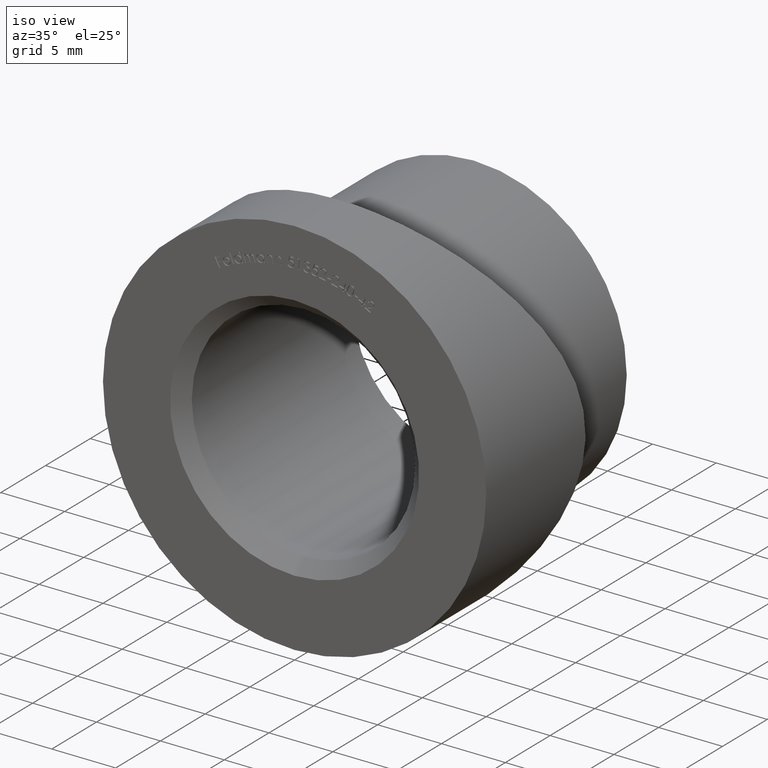
[diagram: clean part render]
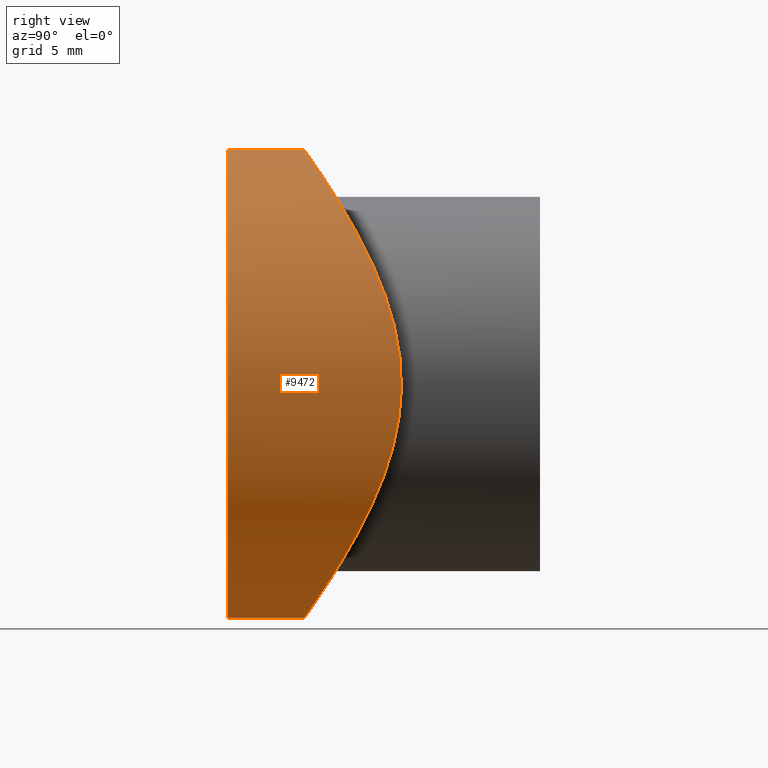
[diagram: tour spotlight — one face highlighted and labeled with its STEP entity id]
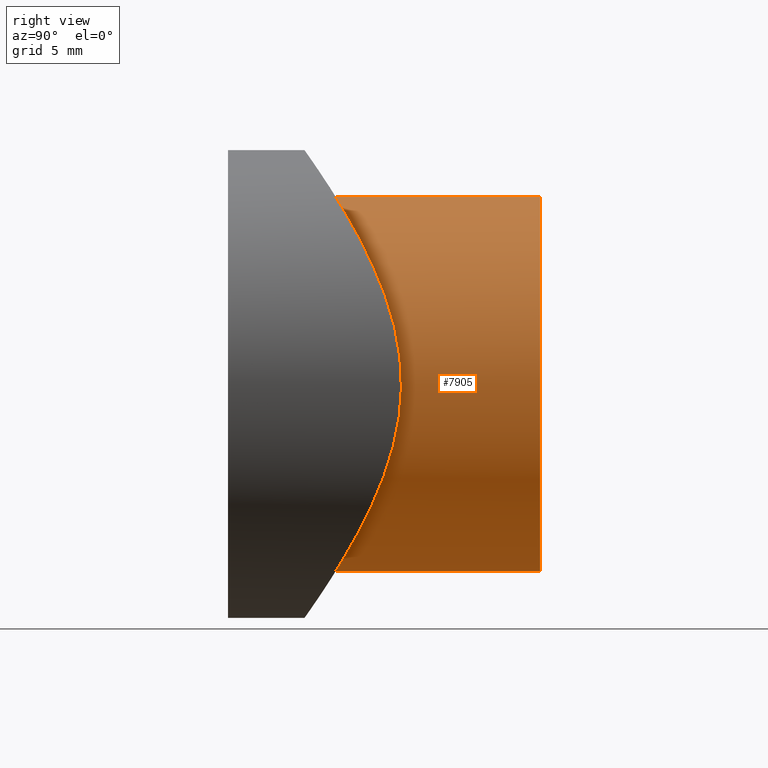
[diagram: tour spotlight — one face highlighted and labeled with its STEP entity id]
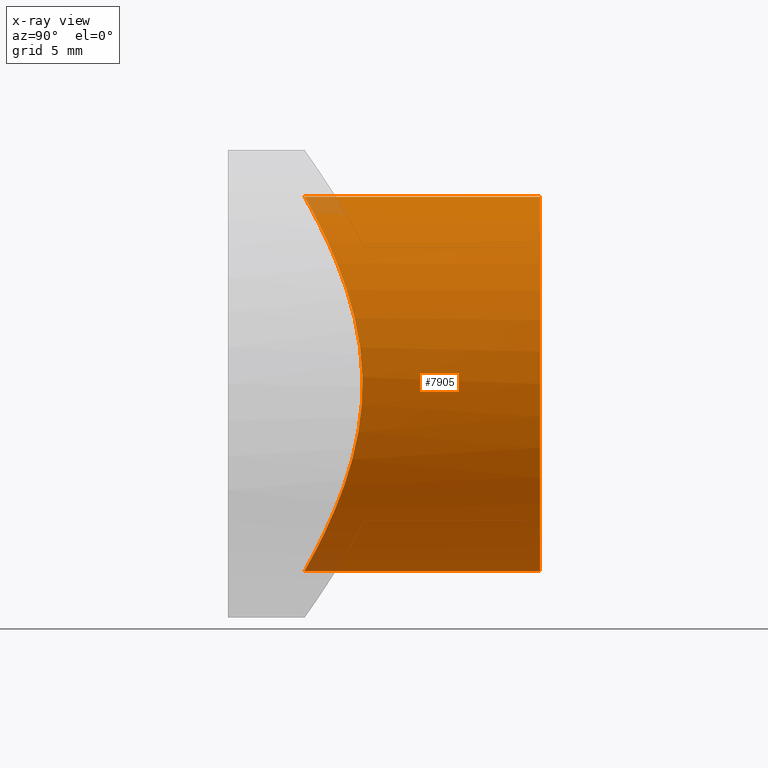
[diagram: x-ray of the same camera — body ghosted, this tour face saturated]
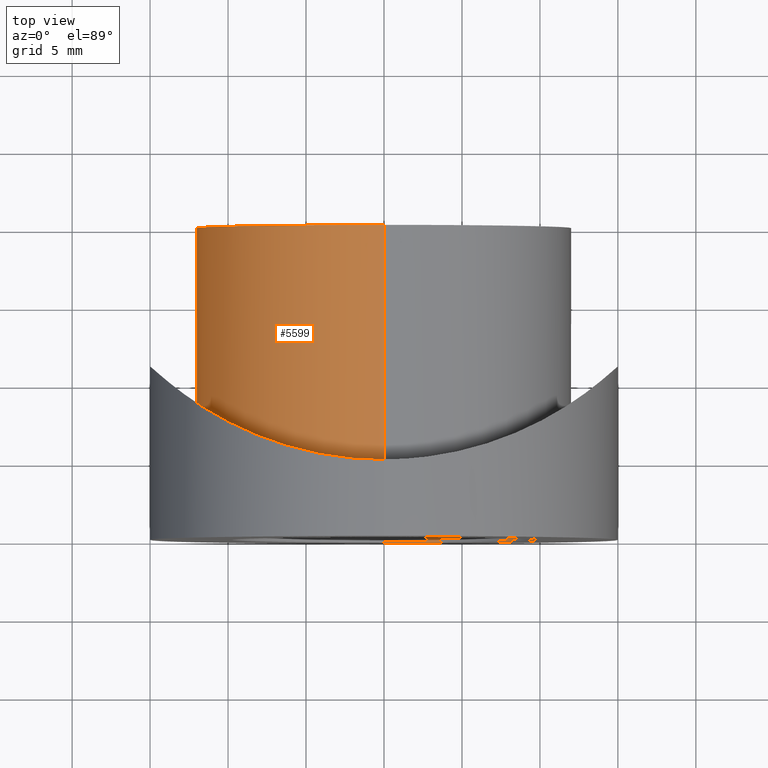
[diagram: tour spotlight — one face highlighted and labeled with its STEP entity id]
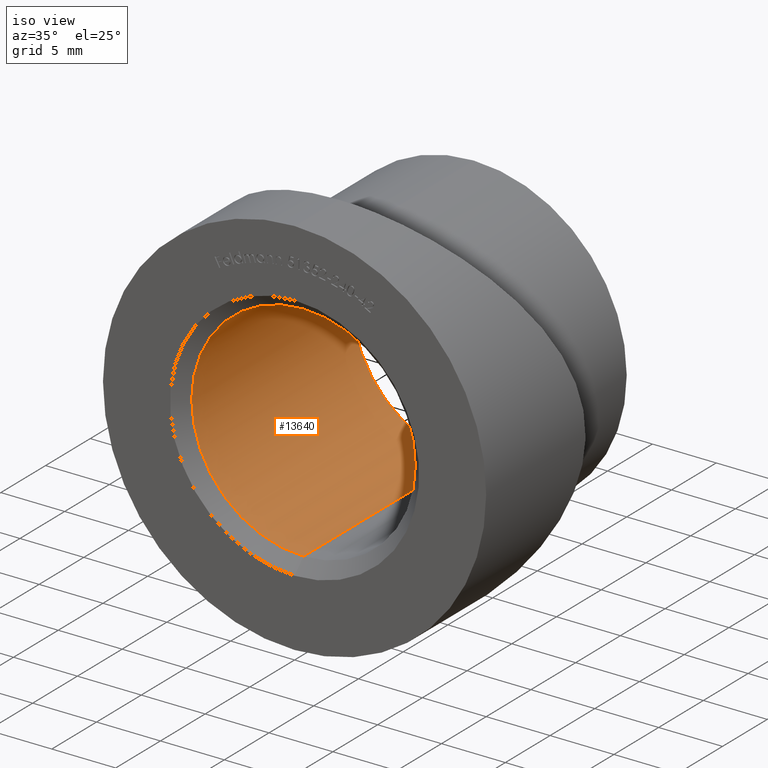
[diagram: tour spotlight — one face highlighted and labeled with its STEP entity id]
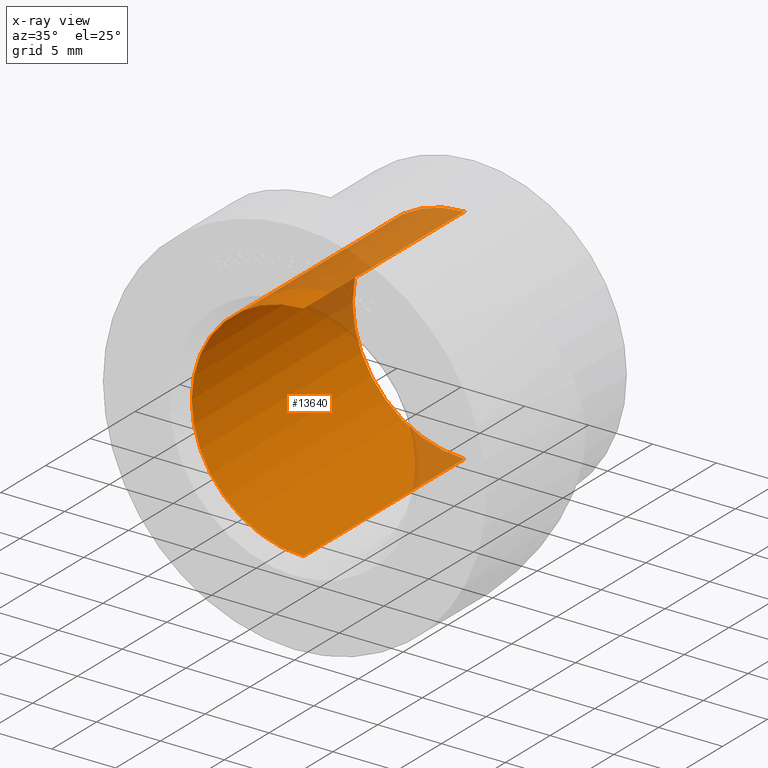
[diagram: x-ray of the same camera — body ghosted, this tour face saturated]
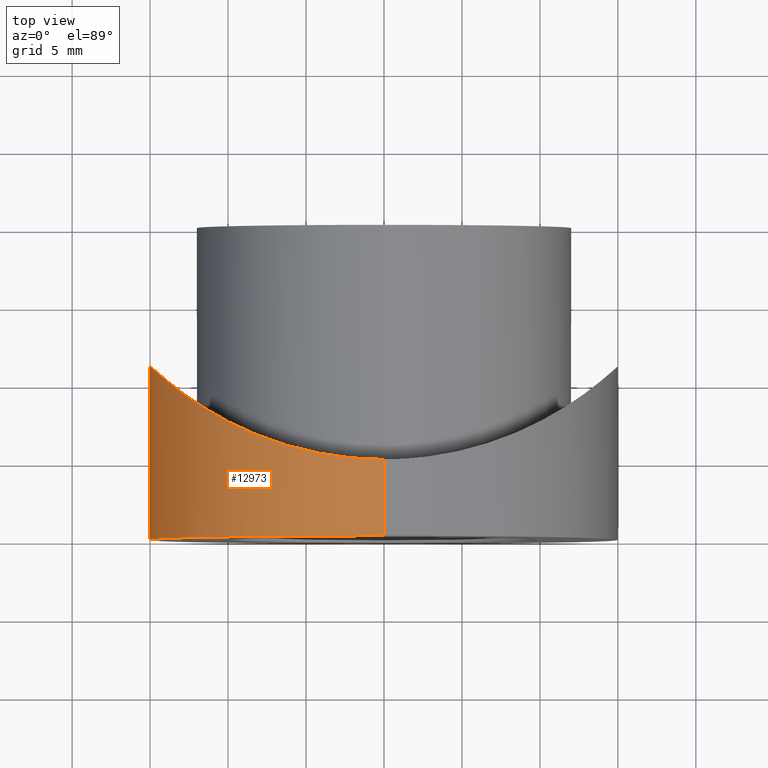
[diagram: tour spotlight — one face highlighted and labeled with its STEP entity id]
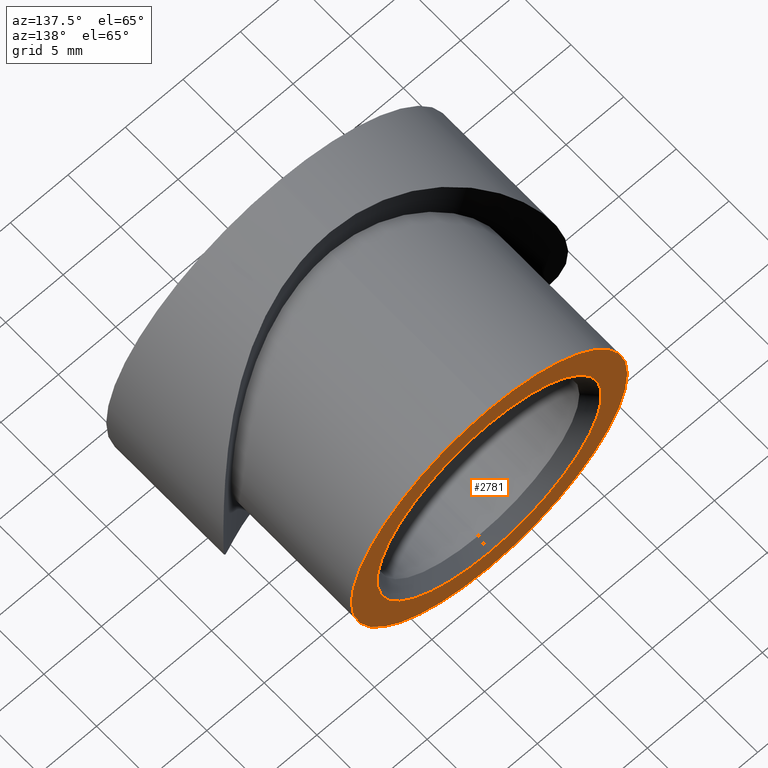
[diagram: tour spotlight — one face highlighted and labeled with its STEP entity id]
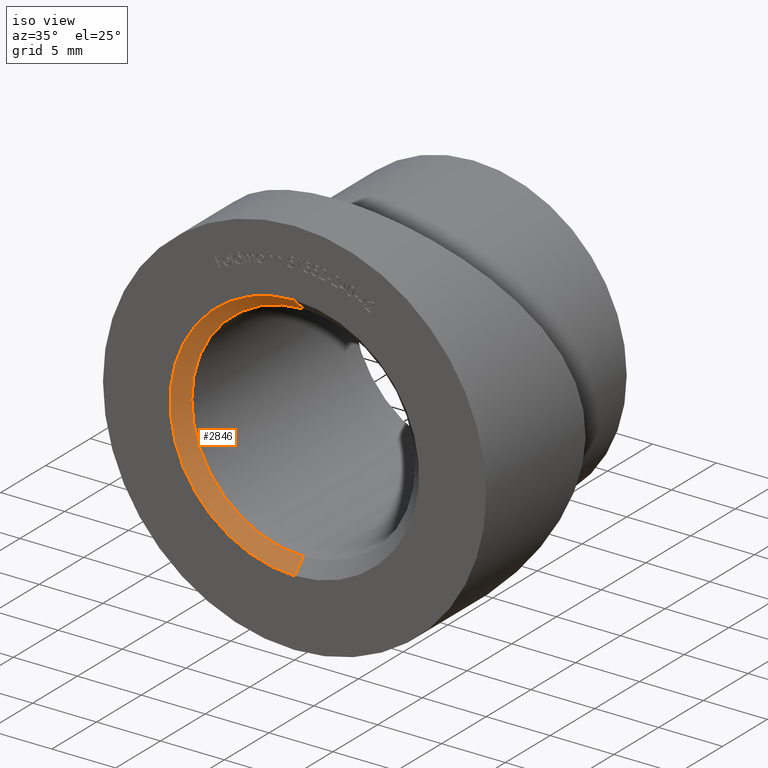
[diagram: tour spotlight — one face highlighted and labeled with its STEP entity id]
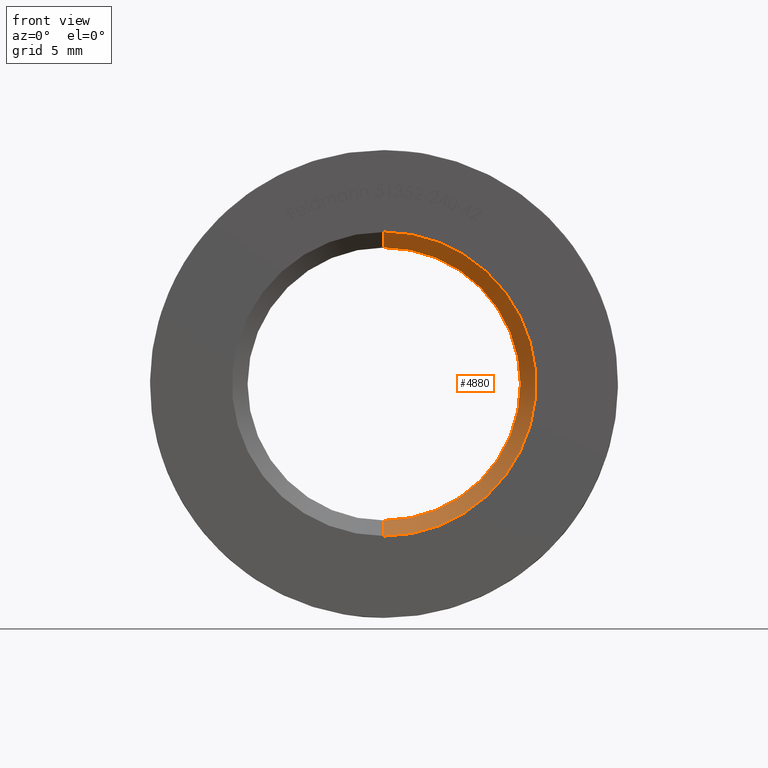
[diagram: tour spotlight — one face highlighted and labeled with its STEP entity id]
A machine part: a face-by-face anatomy tour. The part has 271 B-rep faces; the first image is the clean iso view, then the 8 largest visible faces are spotlighted one at a time (largest first), each with its STEP entity span.

Face 1 — right view, entity #9472. In plain terms, the highlighted cylindrical surface (partial cylindrical patch) has radius 15 mm, axis along (-0, -1, -0).
Definition (entity closure, byte-faithful):
#166 = CARTESIAN_POINT ( 'NONE',  ( 12.95086280399891400, 9.313078277714879500, 7.583238486127875400 ) ) ;
#256 = CARTESIAN_POINT ( 'NONE',  ( 14.48454752923775700, 10.61715601495642900, 4.027335326478660900 ) ) ;
#323 = CARTESIAN_POINT ( 'NONE',  ( 1.836970198721029600E-015, 0.0000000000000000000, 15.00000000000000000 ) ) ;
#352 = CARTESIAN_POINT ( 'NONE',  ( 11.31931210414192200, 8.158160783535239000, 9.887999797731129800 ) ) ;
#419 = DIRECTION ( 'NONE',  ( 0.0000000000000000000, 0.0000000000000000000, 1.000000000000000000 ) ) ;
#918 = VECTOR ( 'NONE', #11268, 1000.000000000000000 ) ;
#1271 = CARTESIAN_POINT ( 'NONE',  ( 10.31771975614302400, 7.576129878483611100, 10.89814207383176200 ) ) ;
#1352 = CARTESIAN_POINT ( 'NONE',  ( 4.026673480603225400, 5.280182047635289400, 14.45809961079490200 ) ) ;
#1402 = CARTESIAN_POINT ( 'NONE',  ( 14.99970170496068900, 11.11837962911275200, 0.5190039660785226200 ) ) ;
#1505 = EDGE_CURVE ( 'NONE', #1825, #13353, #12488, .T. ) ;
#1825 = VERTEX_POINT ( 'NONE', #13374 ) ;
#1859 = EDGE_LOOP ( 'NONE', ( #13791, #5250, #2007, #11762 ) ) ;
#1997 = CARTESIAN_POINT ( 'NONE',  ( 1.033356399120643100, 4.900000000000002100, -15.00000000000000400 ) ) ;
#2007 = ORIENTED_EDGE ( 'NONE', *, *, #7743, .T. ) ;
#2096 = CARTESIAN_POINT ( 'NONE',  ( 6.351530455719397700, 5.868324486726909800, -13.59783177504358200 ) ) ;
#2438 = CARTESIAN_POINT ( 'NONE',  ( 14.97343534145617900, 11.09195012549243100, 1.026651843955649800 ) ) ;
#2482 = CARTESIAN_POINT ( 'NONE',  ( 0.5101671749474626600, 4.899999999999997700, 15.00000000000000400 ) ) ;
#2531 = CARTESIAN_POINT ( 'NONE',  ( 2.048559601778870800, 4.992956673467698000, 14.86837835065094600 ) ) ;
#2578 = CARTESIAN_POINT ( 'NONE',  ( 9.964075930361058700, 7.383009028569627900, 11.22248224513934500 ) ) ;
#2876 = DIRECTION ( 'NONE',  ( 0.0000000000000000000, 0.0000000000000000000, -1.000000000000000000 ) ) ;
#3188 = CARTESIAN_POINT ( 'NONE',  ( 4.015400776673463800, 5.277912842407222800, -14.46137216590424400 ) ) ;
#3556 = CARTESIAN_POINT ( 'NONE',  ( 7.645083418236096900, 6.321252006725751800, -12.91471632741380300 ) ) ;
#3603 = CARTESIAN_POINT ( 'NONE',  ( 14.18855926920799400, 10.34012073669626000, 4.962408395752210500 ) ) ;
#4213 = AXIS2_PLACEMENT_3D ( 'NONE', #6220, #8383, #419 ) ;
#4630 = CARTESIAN_POINT ( 'NONE',  ( 13.43100386595288000, 9.689739189981985100, -6.748819515009667000 ) ) ;
#4680 = CARTESIAN_POINT ( 'NONE',  ( 8.852002315393972900, 6.831710801410935100, 12.11899376402822300 ) ) ;
#4724 = CARTESIAN_POINT ( 'NONE',  ( 9.231927247915734800, 7.011257782142964200, 11.83209348245944700 ) ) ;
#4810 = CARTESIAN_POINT ( 'NONE',  ( 14.86333637846644400, 10.98298400107315600, 2.036138960231167200 ) ) ;
#4868 = AXIS2_PLACEMENT_3D ( 'NONE', #11638, #5149, #2876 ) ;
#5072 = CARTESIAN_POINT ( 'NONE',  ( 0.0000000000000000000, 0.0000000000000000000, -15.00000000000000000 ) ) ;
#5113 = CARTESIAN_POINT ( 'NONE',  ( 0.0000000000000000000, 20.00000000000000000, -15.00000000000000000 ) ) ;
#5149 = DIRECTION ( 'NONE',  ( -0.0000000000000000000, -1.000000000000000000, -0.0000000000000000000 ) ) ;
#5250 = ORIENTED_EDGE ( 'NONE', *, *, #1505, .T. ) ;
#5307 = LINE ( 'NONE', #5113, #13763 ) ;
#5737 = CARTESIAN_POINT ( 'NONE',  ( 6.791217099102302900, 6.012054784869133300, -13.38344382445033500 ) ) ;
#5781 = CARTESIAN_POINT ( 'NONE',  ( 12.97779654802850900, 9.323824901508217500, -7.580791247353466200 ) ) ;
#5830 = CARTESIAN_POINT ( 'NONE',  ( 13.99838597507500300, 10.17683067766228400, -5.411080993311568200 ) ) ;
#6218 = DIRECTION ( 'NONE',  ( -0.0000000000000000000, -1.000000000000000000, -0.0000000000000000000 ) ) ;
#6220 = CARTESIAN_POINT ( 'NONE',  ( 0.0000000000000000000, 0.0000000000000000000, 0.0000000000000000000 ) ) ;
#6795 = CARTESIAN_POINT ( 'NONE',  ( 14.94804833223627900, 11.06679669200955600, -1.273382335794187100 ) ) ;
#6878 = CARTESIAN_POINT ( 'NONE',  ( 7.669062603808170000, 6.317049428669947500, 12.92661201382837200 ) ) ;
#6923 = CARTESIAN_POINT ( 'NONE',  ( 14.74039007328632200, 10.86300763193868800, 2.790115978284367000 ) ) ;
#6971 = CARTESIAN_POINT ( 'NONE',  ( 11.91380816464897800, 8.552212437312412900, 9.162485973406608900 ) ) ;
#7566 = CARTESIAN_POINT ( 'NONE',  ( 3.525362641355046700, 5.189213015609552400, -14.58856781065269100 ) ) ;
#7743 = EDGE_CURVE ( 'NONE', #13353, #10236, #11216, .T. ) ;
#7812 = EDGE_CURVE ( 'NONE', #8568, #1825, #12968, .T. ) ;
#7904 = CARTESIAN_POINT ( 'NONE',  ( 14.99378779998259700, 11.11244968222521700, -0.5022815987675092200 ) ) ;
#7946 = CARTESIAN_POINT ( 'NONE',  ( 12.70436926886991500, 9.125168047591426300, 7.988835649168534800 ) ) ;
#7996 = CARTESIAN_POINT ( 'NONE',  ( 9.259529327917258400, 7.009146368158709200, -11.84050930250177400 ) ) ;
#8037 = CARTESIAN_POINT ( 'NONE',  ( 14.86973174700734800, 10.98919325975518300, -2.038058840166235200 ) ) ;
#8383 = DIRECTION ( 'NONE',  ( 0.0000000000000000000, 1.000000000000000000, 0.0000000000000000000 ) ) ;
#8435 = CYLINDRICAL_SURFACE ( 'NONE', #4868, 15.00000000000000000 ) ;
#8568 = VERTEX_POINT ( 'NONE', #13482 ) ;
#9006 = CARTESIAN_POINT ( 'NONE',  ( 9.987513009438796300, 7.384165535398621700, -11.23137529929968700 ) ) ;
#9044 = CARTESIAN_POINT ( 'NONE',  ( 15.00014536824234500, 11.11882384539205400, -0.2464609913336597800 ) ) ;
#9091 = CARTESIAN_POINT ( 'NONE',  ( 2.551696363798568800, 5.048193406101360000, 14.78999408664830600 ) ) ;
#9135 = CARTESIAN_POINT ( 'NONE',  ( 13.62064610950171300, 9.852530914257734200, 6.301839204964747600 ) ) ;
#9472 = ADVANCED_FACE ( 'NONE', ( #12060 ), #8435, .T. ) ;
#10200 = CARTESIAN_POINT ( 'NONE',  ( 11.92469948525148700, 8.559623824908447500, -9.148395562305692500 ) ) ;
#10236 = VERTEX_POINT ( 'NONE', #5072 ) ;
#10242 = CARTESIAN_POINT ( 'NONE',  ( 1.023886303130452600, 4.918509701430021900, 14.97387485116687600 ) ) ;
#10291 = CARTESIAN_POINT ( 'NONE',  ( 14.46523057057526200, 10.60040943961513300, -4.000367625058201400 ) ) ;
#10778 = CARTESIAN_POINT ( 'NONE',  ( -1.234105587926468700E-016, 4.900000000000003000, -15.00000000000000000 ) ) ;
#11129 = CARTESIAN_POINT ( 'NONE',  ( 1.836970198721029600E-015, 20.00000000000000000, 15.00000000000000000 ) ) ;
#11216 = CIRCLE ( 'NONE', #4213, 15.00000000000000000 ) ;
#11218 = CARTESIAN_POINT ( 'NONE',  ( 11.31892550391119600, 8.158015682289248000, -9.888181463966818200 ) ) ;
#11264 = CARTESIAN_POINT ( 'NONE',  ( 8.060838096176542700, 6.487433030605969500, -12.65926637552613200 ) ) ;
#11268 = DIRECTION ( 'NONE',  ( -0.0000000000000000000, -1.000000000000000000, -0.0000000000000000000 ) ) ;
#11306 = CARTESIAN_POINT ( 'NONE',  ( 14.89566689747022500, 11.01489345679889800, 1.784251289190085500 ) ) ;
#11348 = CARTESIAN_POINT ( 'NONE',  ( 14.16948291444263600, 10.32958602519277300, -4.946876846338226700 ) ) ;
#11399 = CARTESIAN_POINT ( 'NONE',  ( 14.79225952839678700, 10.91287613444231600, -2.537705646391688500 ) ) ;
#11600 = EDGE_CURVE ( 'NONE', #8568, #10236, #5307, .T. ) ;
#11638 = CARTESIAN_POINT ( 'NONE',  ( 0.0000000000000000000, 20.00000000000000000, 0.0000000000000000000 ) ) ;
#11762 = ORIENTED_EDGE ( 'NONE', *, *, #11600, .F. ) ;
#12060 = FACE_OUTER_BOUND ( 'NONE', #1859, .T. ) ;
#12336 = CARTESIAN_POINT ( 'NONE',  ( 6.823485403674213900, 6.005631348699734100, 13.39502117176070300 ) ) ;
#12378 = CARTESIAN_POINT ( 'NONE',  ( 4.981939994508442400, 5.487887231530134400, 14.15736619453556100 ) ) ;
#12424 = CARTESIAN_POINT ( 'NONE',  ( 3.540755277119005400, 5.191801434186372100, 14.58485966623157500 ) ) ;
#12473 = CARTESIAN_POINT ( 'NONE',  ( 14.78580158217697300, 10.90713942064409100, 2.538641711094334700 ) ) ;
#12488 = LINE ( 'NONE', #11129, #918 ) ;
#12520 = CARTESIAN_POINT ( 'NONE',  ( 13.40915369830361400, 9.676839969926581000, 6.739803439327003400 ) ) ;
#12968 = B_SPLINE_CURVE_WITH_KNOTS ( 'NONE', 3,
 ( #10778, #1997, #13070, #7566, #3188, #13118, #14223, #2096, #5737, #3556, #11264, #7996, #9006, #11218, #10200, #5781, #4630, #5830, #11348, #10291, #13597, #11399, #8037, #6795, #13405, #7904, #9044, #1402, #2438, #11306, #4810, #12473, #6923, #256, #3603, #9135, #12520, #166, #7946, #6971, #352, #1271, #2578, #4724, #4680, #6878, #12336, #13452, #12378, #1352, #12424, #9091, #2531, #10242, #2482, #13546 ),
 .UNSPECIFIED., .F., .F.,
 ( 4, 2, 2, 2, 2, 2, 2, 2, 2, 2, 2, 2, 2, 2, 2, 2, 2, 2, 2, 2, 2, 2, 2, 2, 2, 2, 2, 4 ),
 ( 5.547488974011972000E-020, 0.003050122000959243300, 0.004575183001438864700, 0.006100244001918486500, 0.007625305002398107500, 0.009150366002877729400, 0.01220048800383697700, 0.01525061000479622400, 0.01830073200575546900, 0.01982579300623509400, 0.02135085400671472200, 0.02287591500719434200, 0.02363844550743415100, 0.02440097600767396300, 0.02592603700815358400, 0.02668856750839339300, 0.02745109800863320500, 0.03050122000959244700, 0.03202628101007206500, 0.03355134201055168900, 0.03660146401151093100, 0.03812652501199054900, 0.03965158601247017300, 0.04270170801342941500, 0.04422676901390903300, 0.04575183001438864300, 0.04727689101486826100, 0.04880195201534787100 ),
 .UNSPECIFIED. ) ;
#13070 = CARTESIAN_POINT ( 'NONE',  ( 2.043170436509503100, 4.975080336109363600, -14.89440917403801700 ) ) ;
#13118 = CARTESIAN_POINT ( 'NONE',  ( 4.978384514409852600, 5.486935098768449300, -14.15875757066219600 ) ) ;
#13353 = VERTEX_POINT ( 'NONE', #323 ) ;
#13374 = CARTESIAN_POINT ( 'NONE',  ( 1.836969968176364600E-015, 4.900000000000000400, 15.00000000000000000 ) ) ;
#13405 = CARTESIAN_POINT ( 'NONE',  ( 14.96780463597057000, 11.08650069110616000, -1.015275221201317900 ) ) ;
#13452 = CARTESIAN_POINT ( 'NONE',  ( 5.454151336420812500, 5.608095883092087100, 13.98209102784477100 ) ) ;
#13482 = CARTESIAN_POINT ( 'NONE',  ( -1.234105587926468700E-016, 4.900000000000003000, -15.00000000000000000 ) ) ;
#13546 = CARTESIAN_POINT ( 'NONE',  ( 1.836969968176364600E-015, 4.900000000000000400, 15.00000000000000000 ) ) ;
#13597 = CARTESIAN_POINT ( 'NONE',  ( 14.59001419307615100, 10.71847994803264800, -3.518860291203699500 ) ) ;
#13763 = VECTOR ( 'NONE', #6218, 1000.000000000000000 ) ;
#13791 = ORIENTED_EDGE ( 'NONE', *, *, #7812, .T. ) ;
#14223 = CARTESIAN_POINT ( 'NONE',  ( 5.445109695152457800, 5.605771212068951600, -13.98548349253870300 ) ) ;

Face 2 — right view, entity #7905. An x-ray twin of the same camera follows (body ghosted, this face saturated) — the face is partly hidden behind the body. In plain terms, the highlighted cylindrical surface (partial cylindrical patch) has radius 12 mm, axis along (0, -1, 0).
Definition (entity closure, byte-faithful):
#500 = DIRECTION ( 'NONE',  ( 0.0000000000000000000, 0.0000000000000000000, -1.000000000000000000 ) ) ;
#512 = DIRECTION ( 'NONE',  ( 0.0000000000000000000, -1.000000000000000000, 0.0000000000000000000 ) ) ;
#555 = VERTEX_POINT ( 'NONE', #11596 ) ;
#790 = CARTESIAN_POINT ( 'NONE',  ( 3.163001788945669600, 5.133704302636438400, -11.58254338459832200 ) ) ;
#837 = CARTESIAN_POINT ( 'NONE',  ( 11.91776099229016100, 8.565937912365734900, -1.612549684469047500 ) ) ;
#884 = CARTESIAN_POINT ( 'NONE',  ( 7.948885171817441800, 6.437710938406745200, 9.022439092634584800 ) ) ;
#1056 = CARTESIAN_POINT ( 'NONE',  ( 1.469576158976824100E-015, 20.00000000000000000, 12.00000000000000200 ) ) ;
#1075 = ORIENTED_EDGE ( 'NONE', *, *, #3424, .T. ) ;
#1651 = VERTEX_POINT ( 'NONE', #9546 ) ;
#1711 = VECTOR ( 'NONE', #512, 1000.000000000000000 ) ;
#1745 = DIRECTION ( 'NONE',  ( 0.0000000000000000000, -1.000000000000000000, 0.0000000000000000000 ) ) ;
#1887 = CARTESIAN_POINT ( 'NONE',  ( 8.767826537976684900, 6.795797154857790000, -8.201934917684917900 ) ) ;
#1940 = CARTESIAN_POINT ( 'NONE',  ( 10.16938533553061300, 7.496677863248123700, 6.382278482495587800 ) ) ;
#1987 = CARTESIAN_POINT ( 'NONE',  ( 4.300447064001836000, 5.337438884096897600, -11.20984365336077500 ) ) ;
#2754 = DIRECTION ( 'NONE',  ( 0.0000000000000000000, -1.000000000000000000, 0.0000000000000000000 ) ) ;
#2926 = CARTESIAN_POINT ( 'NONE',  ( 7.350765113592568200, 6.212631558845649800, -9.492862807543609400 ) ) ;
#2979 = CARTESIAN_POINT ( 'NONE',  ( 10.90946728445962700, 7.921576369542875400, 5.013609399572158200 ) ) ;
#3025 = CARTESIAN_POINT ( 'NONE',  ( 10.39134169792706600, 7.614945291053805600, -6.050998183190044300 ) ) ;
#3083 = CARTESIAN_POINT ( 'NONE',  ( 11.21258637669638800, 8.106960544027600700, 4.293094733091242800 ) ) ;
#3130 = CARTESIAN_POINT ( 'NONE',  ( 3.919502189398172700, 5.261898179088772700, 11.34883836923684800 ) ) ;
#3424 = EDGE_CURVE ( 'NONE', #13073, #555, #4358, .T. ) ;
#3555 = AXIS2_PLACEMENT_3D ( 'NONE', #3942, #1745, #6212 ) ;
#3942 = CARTESIAN_POINT ( 'NONE',  ( 0.0000000000000000000, 20.00000000000000000, 0.0000000000000000000 ) ) ;
#4039 = CARTESIAN_POINT ( 'NONE',  ( 3.158362740744771200, 5.133032415028727000, 11.58375476871099600 ) ) ;
#4085 = CARTESIAN_POINT ( 'NONE',  ( 6.070531396758877200, 5.776308857073646900, -10.38056836078404100 ) ) ;
#4141 = CARTESIAN_POINT ( 'NONE',  ( 11.34521256955017100, 8.190624476149022100, -3.929946894320657700 ) ) ;
#4192 = CARTESIAN_POINT ( 'NONE',  ( 9.033644524808494200, 6.911887710986618100, 7.936148263133541800 ) ) ;
#4238 = CARTESIAN_POINT ( 'NONE',  ( 1.469576158960994100E-015, 4.899999999999999500, 12.00000000000000200 ) ) ;
#4358 = LINE ( 'NONE', #13720, #6608 ) ;
#5206 = CARTESIAN_POINT ( 'NONE',  ( 7.944082643527788300, 6.442107889648185400, -9.002207673168561200 ) ) ;
#5305 = CARTESIAN_POINT ( 'NONE',  ( 2.773618855505785200, 5.078576698326995300, 11.68180287076386200 ) ) ;
#5356 = CARTESIAN_POINT ( 'NONE',  ( 12.00022708212481600, 8.623314099817717300, 0.8090859830903920400 ) ) ;
#5631 = CARTESIAN_POINT ( 'NONE',  ( -1.901925525697636800E-016, 4.899999999999999500, -12.00000000000000200 ) ) ;
#5809 = EDGE_CURVE ( 'NONE', #1651, #13073, #8332, .T. ) ;
#5831 = EDGE_CURVE ( 'NONE', #6406, #555, #11700, .T. ) ;
#6073 = CARTESIAN_POINT ( 'NONE',  ( 0.0000000000000000000, 20.00000000000000000, -12.00000000000000200 ) ) ;
#6212 = DIRECTION ( 'NONE',  ( 0.0000000000000000000, 0.0000000000000000000, -1.000000000000000000 ) ) ;
#6268 = CARTESIAN_POINT ( 'NONE',  ( 0.8124120472865018500, 4.900000000000000400, 12.00000000000000400 ) ) ;
#6311 = CARTESIAN_POINT ( 'NONE',  ( 9.514172795892024600, 7.152851736786241900, -7.323165261769602800 ) ) ;
#6318 = ORIENTED_EDGE ( 'NONE', *, *, #5831, .F. ) ;
#6358 = CARTESIAN_POINT ( 'NONE',  ( 11.67976815584057000, 8.407286643468047800, -2.782328469891925100 ) ) ;
#6396 = CYLINDRICAL_SURFACE ( 'NONE', #9636, 12.00000000000000200 ) ;
#6405 = CARTESIAN_POINT ( 'NONE',  ( 11.99977197651561100, 8.623001613897686800, -0.8158079812222957000 ) ) ;
#6406 = VERTEX_POINT ( 'NONE', #5631 ) ;
#6456 = CARTESIAN_POINT ( 'NONE',  ( 4.296218330979514600, 5.336552024210805100, 11.21148739281245500 ) ) ;
#6608 = VECTOR ( 'NONE', #2754, 1000.000000000000000 ) ;
#6917 = ORIENTED_EDGE ( 'NONE', *, *, #5809, .T. ) ;
#7069 = CARTESIAN_POINT ( 'NONE',  ( 0.0000000000000000000, 20.00000000000000000, 0.0000000000000000000 ) ) ;
#7371 = CARTESIAN_POINT ( 'NONE',  ( 1.607414023456619400, 4.946464894980255000, -11.91844335631933800 ) ) ;
#7467 = CARTESIAN_POINT ( 'NONE',  ( 9.025171930478441200, 6.915105344996027800, -7.917986174942781100 ) ) ;
#7512 = CARTESIAN_POINT ( 'NONE',  ( 11.34749439720060600, 8.192072259937512900, 3.923348427752596300 ) ) ;
#7597 = EDGE_CURVE ( 'NONE', #1651, #6406, #12787, .T. ) ;
#7905 = ADVANCED_FACE ( 'NONE', ( #13299 ), #6396, .T. ) ;
#8332 = CIRCLE ( 'NONE', #3555, 12.00000000000000200 ) ;
#8478 = CARTESIAN_POINT ( 'NONE',  ( 2.777047648965540000, 5.079011365401915300, -11.68102197264966900 ) ) ;
#8529 = CARTESIAN_POINT ( 'NONE',  ( 7.039424169430400700, 6.099938734072242900, -9.726170628558080000 ) ) ;
#8577 = CARTESIAN_POINT ( 'NONE',  ( 10.37173990323616800, 7.609126573443588400, 6.047972614889171300 ) ) ;
#8625 = CARTESIAN_POINT ( 'NONE',  ( 1.606851203858351100, 4.946493767140854200, 11.91838699978630300 ) ) ;
#9228 = DIRECTION ( 'NONE',  ( 0.0000000000000000000, -1.000000000000000000, 0.0000000000000000000 ) ) ;
#9517 = CARTESIAN_POINT ( 'NONE',  ( -1.901925525697636800E-016, 4.899999999999999500, -12.00000000000000200 ) ) ;
#9546 = CARTESIAN_POINT ( 'NONE',  ( 0.0000000000000000000, 20.00000000000000000, -12.00000000000000200 ) ) ;
#9567 = CARTESIAN_POINT ( 'NONE',  ( 5.384462943549774400, 5.581700509727069100, 10.75301468594214400 ) ) ;
#9615 = CARTESIAN_POINT ( 'NONE',  ( 11.21036604785131800, 8.105583704818682700, -4.298727771506334800 ) ) ;
#9636 = AXIS2_PLACEMENT_3D ( 'NONE', #7069, #9228, #500 ) ;
#9661 = CARTESIAN_POINT ( 'NONE',  ( 11.68148730530171200, 8.408423009715731300, 2.775124445195762800 ) ) ;
#9713 = CARTESIAN_POINT ( 'NONE',  ( 11.58244540560494300, 8.343129119577977100, 3.163107713345987300 ) ) ;
#10630 = CARTESIAN_POINT ( 'NONE',  ( 10.74125025409543700, 7.821298413831301300, 5.364373621377008100 ) ) ;
#10727 = CARTESIAN_POINT ( 'NONE',  ( 5.386779234312634800, 5.582354773309096400, -10.75176116797046100 ) ) ;
#10772 = CARTESIAN_POINT ( 'NONE',  ( 9.520599899666056100, 7.151698016562294300, 7.345589457150709700 ) ) ;
#10818 = CARTESIAN_POINT ( 'NONE',  ( 10.75737513239123500, 7.828596682645608600, -5.374416227122713600 ) ) ;
#11596 = CARTESIAN_POINT ( 'NONE',  ( 1.469576158960994100E-015, 4.899999999999999500, 12.00000000000000200 ) ) ;
#11700 = B_SPLINE_CURVE_WITH_KNOTS ( 'NONE', 3,
 ( #9517, #12765, #7371, #8478, #790, #14124, #1987, #10727, #4085, #8529, #2926, #5206, #11790, #1887, #7467, #6311, #13019, #3025, #10818, #9615, #4141, #11840, #6358, #837, #6405, #5356, #11737, #9661, #9713, #7512, #3083, #2979, #10630, #8577, #1940, #10772, #4192, #884, #13062, #11892, #9567, #6456, #3130, #4039, #5305, #8625, #6268, #4238 ),
 .UNSPECIFIED., .F., .F.,
 ( 4, 2, 2, 2, 2, 2, 2, 2, 2, 2, 2, 2, 2, 2, 2, 2, 2, 2, 2, 2, 2, 2, 2, 4 ),
 ( 3.301463373000476500E-019, 0.002398403993286449100, 0.003597605989929673200, 0.004796807986572896400, 0.007195211979859345500, 0.008394413976502569700, 0.009593615973145796400, 0.01079281796978902300, 0.01199201996643225300, 0.01439042395971871000, 0.01558962595636194200, 0.01678882795300517400, 0.01918723194629163800, 0.02158563593957810200, 0.02278483793622133500, 0.02398403993286456900, 0.02518324192950779900, 0.02638244392615103300, 0.02878084791943749300, 0.03117925191272396000, 0.03357765590601042400, 0.03477685790265366100, 0.03597605989929689200, 0.03837446389258335900 ),
 .UNSPECIFIED. ) ;
#11737 = CARTESIAN_POINT ( 'NONE',  ( 11.91883714413877500, 8.566674890374580200, 1.604732542354148500 ) ) ;
#11790 = CARTESIAN_POINT ( 'NONE',  ( 8.227281527606722400, 6.559302255243134800, -8.744046961189560800 ) ) ;
#11840 = CARTESIAN_POINT ( 'NONE',  ( 11.58063142266778900, 8.341943919592120300, -3.169748679750370900 ) ) ;
#11892 = CARTESIAN_POINT ( 'NONE',  ( 6.065135802485645700, 5.774905626655528800, 10.38315654933090200 ) ) ;
#12255 = EDGE_LOOP ( 'NONE', ( #6917, #1075, #6318, #12387 ) ) ;
#12387 = ORIENTED_EDGE ( 'NONE', *, *, #7597, .F. ) ;
#12765 = CARTESIAN_POINT ( 'NONE',  ( 0.8120736501610078500, 4.900000000000001200, -12.00000000000000400 ) ) ;
#12787 = LINE ( 'NONE', #6073, #1711 ) ;
#13019 = CARTESIAN_POINT ( 'NONE',  ( 9.746423362690588700, 7.271655964898242200, -7.011124871175161000 ) ) ;
#13062 = CARTESIAN_POINT ( 'NONE',  ( 7.345422088544905700, 6.201756159674069100, 9.520534993981320000 ) ) ;
#13073 = VERTEX_POINT ( 'NONE', #1056 ) ;
#13299 = FACE_OUTER_BOUND ( 'NONE', #12255, .T. ) ;
#13720 = CARTESIAN_POINT ( 'NONE',  ( 1.469576158976824100E-015, 20.00000000000000000, 12.00000000000000200 ) ) ;
#14124 = CARTESIAN_POINT ( 'NONE',  ( 3.927037183403512300, 5.263289257986866000, -11.34628884407329300 ) ) ;

Face 3 — top view, entity #5599. In plain terms, the highlighted cylindrical surface (partial cylindrical patch) has radius 12 mm, axis along (0, -1, 0).
Definition (entity closure, byte-faithful):
#261 = CARTESIAN_POINT ( 'NONE',  ( -11.89897078727672800, 8.554149534263357800, 1.604678494026813100 ) ) ;
#309 = CARTESIAN_POINT ( 'NONE',  ( -5.389084771907148400, 5.582958795108450700, 10.75061237104432100 ) ) ;
#357 = CARTESIAN_POINT ( 'NONE',  ( -9.027815947643244200, 6.916343988145793100, 7.915005195023717000 ) ) ;
#512 = DIRECTION ( 'NONE',  ( 0.0000000000000000000, -1.000000000000000000, 0.0000000000000000000 ) ) ;
#555 = VERTEX_POINT ( 'NONE', #11596 ) ;
#1043 = CARTESIAN_POINT ( 'NONE',  ( -3.169354035720235400, 5.123537076247561800, 11.60126269438040600 ) ) ;
#1056 = CARTESIAN_POINT ( 'NONE',  ( 1.469576158976824100E-015, 20.00000000000000000, 12.00000000000000200 ) ) ;
#1338 = DIRECTION ( 'NONE',  ( 0.0000000000000000000, -1.000000000000000000, 0.0000000000000000000 ) ) ;
#1359 = CARTESIAN_POINT ( 'NONE',  ( -10.36945975567637200, 7.607843412008609400, -6.051911542259270900 ) ) ;
#1408 = CARTESIAN_POINT ( 'NONE',  ( -11.68086462136474400, 8.408011997023452400, 2.777656966490603900 ) ) ;
#1651 = VERTEX_POINT ( 'NONE', #9546 ) ;
#1690 = ORIENTED_EDGE ( 'NONE', *, *, #8609, .T. ) ;
#1711 = VECTOR ( 'NONE', #512, 1000.000000000000000 ) ;
#2349 = CARTESIAN_POINT ( 'NONE',  ( -0.8083792777196825400, 4.911682670121996000, -11.97939430576875700 ) ) ;
#2443 = CARTESIAN_POINT ( 'NONE',  ( -7.367894042613452000, 6.209808124985679400, 9.503912034893680500 ) ) ;
#2489 = CARTESIAN_POINT ( 'NONE',  ( -6.063429026871586000, 5.774419416857212700, -10.38408752398875700 ) ) ;
#2536 = CARTESIAN_POINT ( 'NONE',  ( -10.75859021668063600, 7.829306050309898300, 5.372162251010760900 ) ) ;
#2754 = DIRECTION ( 'NONE',  ( 0.0000000000000000000, -1.000000000000000000, 0.0000000000000000000 ) ) ;
#3424 = EDGE_CURVE ( 'NONE', #13073, #555, #4358, .T. ) ;
#3522 = CARTESIAN_POINT ( 'NONE',  ( -11.68049711204411000, 8.407767857916391900, -2.779353548499150900 ) ) ;
#3561 = CARTESIAN_POINT ( 'NONE',  ( -8.770265165739800800, 6.796904098089588500, 8.199334744979060100 ) ) ;
#3610 = CARTESIAN_POINT ( 'NONE',  ( -11.58090055474633200, 8.342122364900186300, -3.168657795523263800 ) ) ;
#3660 = CARTESIAN_POINT ( 'NONE',  ( -7.929793964585343200, 6.436302101143140500, -9.014897433982167000 ) ) ;
#3931 = AXIS2_PLACEMENT_3D ( 'NONE', #10094, #1338, #5587 ) ;
#4358 = LINE ( 'NONE', #13720, #6608 ) ;
#4396 = CARTESIAN_POINT ( 'NONE',  ( 0.0000000000000000000, 20.00000000000000000, 0.0000000000000000000 ) ) ;
#4437 = DIRECTION ( 'NONE',  ( 0.0000000000000000000, -1.000000000000000000, 0.0000000000000000000 ) ) ;
#4587 = CARTESIAN_POINT ( 'NONE',  ( -1.901925525697636800E-016, 4.899999999999999500, -12.00000000000000200 ) ) ;
#4635 = CARTESIAN_POINT ( 'NONE',  ( -11.34722679309429000, 8.191900870463918200, 3.924187329783762800 ) ) ;
#4683 = CARTESIAN_POINT ( 'NONE',  ( -10.90803083209185900, 7.920713840620765100, -5.016723385606243600 ) ) ;
#4731 = CARTESIAN_POINT ( 'NONE',  ( -10.16675624961395600, 7.495244975315119800, -6.386425557754922300 ) ) ;
#4772 = CARTESIAN_POINT ( 'NONE',  ( -11.83906433118340300, 8.513482619852858600, 1.998632604618729000 ) ) ;
#5465 = CARTESIAN_POINT ( 'NONE',  ( -0.8111941113827065800, 4.899999999999999500, 12.00000000000000400 ) ) ;
#5587 = DIRECTION ( 'NONE',  ( 0.0000000000000000000, 0.0000000000000000000, -1.000000000000000000 ) ) ;
#5599 = ADVANCED_FACE ( 'NONE', ( #7634 ), #11090, .T. ) ;
#5631 = CARTESIAN_POINT ( 'NONE',  ( -1.901925525697636800E-016, 4.899999999999999500, -12.00000000000000200 ) ) ;
#5693 = CARTESIAN_POINT ( 'NONE',  ( -9.517465565370413200, 7.154500059970437100, 7.318921862799362200 ) ) ;
#5743 = CARTESIAN_POINT ( 'NONE',  ( -12.00010073768325300, 8.623227348835328600, 0.4019085952267577000 ) ) ;
#5835 = CARTESIAN_POINT ( 'NONE',  ( -3.155409707173730800, 5.132611577477360900, -11.58451261625198600 ) ) ;
#5878 = CARTESIAN_POINT ( 'NONE',  ( -7.022693533214515500, 6.094116491892142700, -9.738089486957337100 ) ) ;
#5955 = ORIENTED_EDGE ( 'NONE', *, *, #9273, .F. ) ;
#6073 = CARTESIAN_POINT ( 'NONE',  ( 0.0000000000000000000, 20.00000000000000000, -12.00000000000000200 ) ) ;
#6406 = VERTEX_POINT ( 'NONE', #5631 ) ;
#6608 = VECTOR ( 'NONE', #2754, 1000.000000000000000 ) ;
#6797 = CARTESIAN_POINT ( 'NONE',  ( -11.21195962862337200, 8.106575048103147600, 4.294625590378045000 ) ) ;
#6839 = CARTESIAN_POINT ( 'NONE',  ( -1.602750788711859900, 4.956928836199350200, -11.89918295090108400 ) ) ;
#6884 = CARTESIAN_POINT ( 'NONE',  ( -0.4054281107843751300, 4.900000000000001200, -12.00000000000000200 ) ) ;
#6977 = CARTESIAN_POINT ( 'NONE',  ( -11.97950163924785200, 8.609033336098495000, 0.8074895299105500100 ) ) ;
#7369 = EDGE_LOOP ( 'NONE', ( #12650, #1690, #13577, #5955 ) ) ;
#7597 = EDGE_CURVE ( 'NONE', #1651, #6406, #12787, .T. ) ;
#7634 = FACE_OUTER_BOUND ( 'NONE', #7369, .T. ) ;
#7661 = CARTESIAN_POINT ( 'NONE',  ( -1.608624384066039900, 4.946533868269131800, 11.91832323352353000 ) ) ;
#7702 = DIRECTION ( 'NONE',  ( 0.0000000000000000000, 0.0000000000000000000, -1.000000000000000000 ) ) ;
#7930 = CIRCLE ( 'NONE', #3931, 12.00000000000000200 ) ;
#8000 = CARTESIAN_POINT ( 'NONE',  ( -10.73965217874806500, 7.820354982142101900, -5.367606544767863100 ) ) ;
#8041 = CARTESIAN_POINT ( 'NONE',  ( -10.39261665037718400, 7.615689740733120800, 6.048638598173353900 ) ) ;
#8183 = B_SPLINE_CURVE_WITH_KNOTS ( 'NONE', 3,
 ( #8828, #5465, #7661, #1043, #12482, #309, #9095, #2443, #10157, #3561, #357, #5693, #10111, #8041, #2536, #6797, #4635, #12297, #1408, #4772, #261, #6977, #5743, #13457, #13506, #3522, #3610, #11311, #11269, #4683, #8000, #1359, #4731, #12383, #9142, #12342, #3660, #10249, #5878, #2489, #10205, #9051, #12431, #5835, #11223, #11177, #6839, #2349, #6884, #4587 ),
 .UNSPECIFIED., .F., .F.,
 ( 4, 2, 2, 2, 2, 2, 2, 2, 2, 2, 2, 2, 2, 2, 2, 2, 2, 2, 2, 2, 2, 2, 2, 2, 4 ),
 ( 0.03837446389258335900, 0.04076927229377465300, 0.04316408069496593900, 0.04555888909615723300, 0.04795369749734852700, 0.04915110169794417700, 0.05034850589853982800, 0.05274331429973112100, 0.05394071850032677200, 0.05513812270092241500, 0.05633552690151806500, 0.05753293110211371600, 0.05992773950330501600, 0.06112514370390066700, 0.06232254790449631700, 0.06351995210509196700, 0.06471735630568761800, 0.06711216470687891800, 0.06830956890747455500, 0.06950697310807020500, 0.07190178150926149200, 0.07309918570985714200, 0.07429658991045279300, 0.07549399411104842900, 0.07669139831164407900 ),
 .UNSPECIFIED. ) ;
#8609 = EDGE_CURVE ( 'NONE', #13073, #1651, #7930, .T. ) ;
#8629 = AXIS2_PLACEMENT_3D ( 'NONE', #4396, #4437, #7702 ) ;
#8828 = CARTESIAN_POINT ( 'NONE',  ( 1.469576158960994100E-015, 4.899999999999999500, 12.00000000000000200 ) ) ;
#9051 = CARTESIAN_POINT ( 'NONE',  ( -4.291092763567296400, 5.335473846922650600, -11.21348656150926900 ) ) ;
#9095 = CARTESIAN_POINT ( 'NONE',  ( -6.073593552080939900, 5.777178916002204900, 10.37890494967058400 ) ) ;
#9142 = CARTESIAN_POINT ( 'NONE',  ( -9.031853748599367300, 6.911017200749681100, -7.938279334838297200 ) ) ;
#9273 = EDGE_CURVE ( 'NONE', #555, #6406, #8183, .T. ) ;
#9546 = CARTESIAN_POINT ( 'NONE',  ( 0.0000000000000000000, 20.00000000000000000, -12.00000000000000200 ) ) ;
#10094 = CARTESIAN_POINT ( 'NONE',  ( 0.0000000000000000000, 20.00000000000000000, 0.0000000000000000000 ) ) ;
#10111 = CARTESIAN_POINT ( 'NONE',  ( -9.749131554679978600, 7.273064891486532300, 7.007321982240833700 ) ) ;
#10157 = CARTESIAN_POINT ( 'NONE',  ( -7.959338816311082500, 6.441994620254025300, 9.013073335860683600 ) ) ;
#10205 = CARTESIAN_POINT ( 'NONE',  ( -5.382371783718094000, 5.581077809706308700, -10.75421340055096700 ) ) ;
#10249 = CARTESIAN_POINT ( 'NONE',  ( -7.331970665694337100, 6.205657750614635800, -9.507482012782883600 ) ) ;
#11090 = CYLINDRICAL_SURFACE ( 'NONE', #8629, 12.00000000000000200 ) ;
#11177 = CARTESIAN_POINT ( 'NONE',  ( -1.995356155515785700, 4.990496104346704900, -11.83956985334823700 ) ) ;
#11223 = CARTESIAN_POINT ( 'NONE',  ( -2.771685846657638400, 5.078335972730556600, -11.68223514859655200 ) ) ;
#11269 = CARTESIAN_POINT ( 'NONE',  ( -11.21125905703738600, 8.106132926620214000, -4.296547511380763900 ) ) ;
#11311 = CARTESIAN_POINT ( 'NONE',  ( -11.34611355381897900, 8.191198170007369900, -3.927258217624544700 ) ) ;
#11596 = CARTESIAN_POINT ( 'NONE',  ( 1.469576158960994100E-015, 4.899999999999999500, 12.00000000000000200 ) ) ;
#12297 = CARTESIAN_POINT ( 'NONE',  ( -11.58257130111247200, 8.343209400855867500, 3.162727327449834200 ) ) ;
#12342 = CARTESIAN_POINT ( 'NONE',  ( -8.217010333824418900, 6.554959659153275300, -8.753765270289411800 ) ) ;
#12383 = CARTESIAN_POINT ( 'NONE',  ( -9.518741226277642300, 7.150780117968720300, -7.347858303097650500 ) ) ;
#12431 = CARTESIAN_POINT ( 'NONE',  ( -3.914023424264311000, 5.260892333994412700, -11.35068119588150600 ) ) ;
#12482 = CARTESIAN_POINT ( 'NONE',  ( -3.940601350748570200, 5.256226937608015100, 11.36175875583227300 ) ) ;
#12650 = ORIENTED_EDGE ( 'NONE', *, *, #3424, .F. ) ;
#12787 = LINE ( 'NONE', #6073, #1711 ) ;
#13073 = VERTEX_POINT ( 'NONE', #1056 ) ;
#13457 = CARTESIAN_POINT ( 'NONE',  ( -11.99979740217638000, 8.623019071736244700, -0.8128070131181368600 ) ) ;
#13506 = CARTESIAN_POINT ( 'NONE',  ( -11.91849467795825200, 8.566436516587115700, -1.607718986509461400 ) ) ;
#13577 = ORIENTED_EDGE ( 'NONE', *, *, #7597, .T. ) ;
#13720 = CARTESIAN_POINT ( 'NONE',  ( 1.469576158976824100E-015, 20.00000000000000000, 12.00000000000000200 ) ) ;

Face 4 — iso view, entity #13640. An x-ray twin of the same camera follows (body ghosted, this face saturated) — the face is partly hidden behind the body. In plain terms, the highlighted cylindrical surface (partial cylindrical patch) has radius 8.75 mm, axis along (-0, 1, -0).
Definition (entity closure, byte-faithful):
#300 = CARTESIAN_POINT ( 'NONE',  ( 1.071565949253932900E-015, 18.99999999999998900, -8.749999999999992900 ) ) ;
#331 = ORIENTED_EDGE ( 'NONE', *, *, #7960, .T. ) ;
#1079 = DIRECTION ( 'NONE',  ( 0.0000000000000000000, 0.0000000000000000000, -1.000000000000000000 ) ) ;
#1558 = CIRCLE ( 'NONE', #5859, 8.749999999999992900 ) ;
#1906 = CARTESIAN_POINT ( 'NONE',  ( 1.071565949253932900E-015, 0.9999999999999904500, -8.749999999999992900 ) ) ;
#2101 = AXIS2_PLACEMENT_3D ( 'NONE', #2616, #13631, #7159 ) ;
#2407 = CIRCLE ( 'NONE', #11585, 8.749999999999992900 ) ;
#2616 = CARTESIAN_POINT ( 'NONE',  ( 0.0000000000000000000, 20.00000000000000000, 0.0000000000000000000 ) ) ;
#3317 = CARTESIAN_POINT ( 'NONE',  ( 0.0000000000000000000, 18.99999999999998900, 0.0000000000000000000 ) ) ;
#3341 = VECTOR ( 'NONE', #12604, 1000.000000000000000 ) ;
#3472 = ORIENTED_EDGE ( 'NONE', *, *, #4610, .T. ) ;
#4190 = DIRECTION ( 'NONE',  ( -0.0000000000000000000, 1.000000000000000000, -0.0000000000000000000 ) ) ;
#4610 = EDGE_CURVE ( 'NONE', #11842, #10373, #1558, .T. ) ;
#4755 = EDGE_CURVE ( 'NONE', #11036, #11842, #4875, .T. ) ;
#4875 = LINE ( 'NONE', #12700, #3341 ) ;
#5497 = DIRECTION ( 'NONE',  ( 0.0000000000000000000, 1.000000000000000000, 0.0000000000000000000 ) ) ;
#5859 = AXIS2_PLACEMENT_3D ( 'NONE', #3317, #5497, #1079 ) ;
#7159 = DIRECTION ( 'NONE',  ( 0.0000000000000000000, 0.0000000000000000000, 1.000000000000000000 ) ) ;
#7960 = EDGE_CURVE ( 'NONE', #10780, #11036, #2407, .T. ) ;
#8044 = VECTOR ( 'NONE', #4190, 1000.000000000000000 ) ;
#8233 = CARTESIAN_POINT ( 'NONE',  ( 0.0000000000000000000, 0.9999999999999904500, 0.0000000000000000000 ) ) ;
#9788 = EDGE_LOOP ( 'NONE', ( #331, #10842, #3472, #11498 ) ) ;
#10017 = CARTESIAN_POINT ( 'NONE',  ( 0.0000000000000000000, 18.99999999999998900, 8.749999999999992900 ) ) ;
#10373 = VERTEX_POINT ( 'NONE', #10017 ) ;
#10482 = DIRECTION ( 'NONE',  ( -0.0000000000000000000, -1.000000000000000000, -0.0000000000000000000 ) ) ;
#10780 = VERTEX_POINT ( 'NONE', #11106 ) ;
#10842 = ORIENTED_EDGE ( 'NONE', *, *, #4755, .T. ) ;
#10971 = LINE ( 'NONE', #11889, #8044 ) ;
#11036 = VERTEX_POINT ( 'NONE', #1906 ) ;
#11106 = CARTESIAN_POINT ( 'NONE',  ( 0.0000000000000000000, 0.9999999999999904500, 8.749999999999992900 ) ) ;
#11498 = ORIENTED_EDGE ( 'NONE', *, *, #12626, .F. ) ;
#11585 = AXIS2_PLACEMENT_3D ( 'NONE', #8233, #10482, #11588 ) ;
#11588 = DIRECTION ( 'NONE',  ( 0.0000000000000000000, 0.0000000000000000000, 1.000000000000000000 ) ) ;
#11842 = VERTEX_POINT ( 'NONE', #300 ) ;
#11889 = CARTESIAN_POINT ( 'NONE',  ( 0.0000000000000000000, 20.00000000000000000, 8.749999999999992900 ) ) ;
#12604 = DIRECTION ( 'NONE',  ( -0.0000000000000000000, 1.000000000000000000, -0.0000000000000000000 ) ) ;
#12626 = EDGE_CURVE ( 'NONE', #10780, #10373, #10971, .T. ) ;
#12700 = CARTESIAN_POINT ( 'NONE',  ( 1.071565949253932900E-015, 20.00000000000000000, -8.749999999999992900 ) ) ;
#13631 = DIRECTION ( 'NONE',  ( -0.0000000000000000000, 1.000000000000000000, -0.0000000000000000000 ) ) ;
#13640 = ADVANCED_FACE ( 'NONE', ( #13739 ), #14236, .F. ) ;
#13739 = FACE_OUTER_BOUND ( 'NONE', #9788, .T. ) ;
#14236 = CYLINDRICAL_SURFACE ( 'NONE', #2101, 8.749999999999992900 ) ;

Face 5 — top view, entity #12973. In plain terms, the highlighted cylindrical surface (partial cylindrical patch) has radius 15 mm, axis along (-0, -1, -0).
Definition (entity closure, byte-faithful):
#323 = CARTESIAN_POINT ( 'NONE',  ( 1.836970198721029600E-015, 0.0000000000000000000, 15.00000000000000000 ) ) ;
#417 = CARTESIAN_POINT ( 'NONE',  ( -7.647301505249496100, 6.308381959549065800, -12.93992218129629500 ) ) ;
#462 = CARTESIAN_POINT ( 'NONE',  ( -11.90498977875691000, 8.545938441045329600, -9.175073987099706200 ) ) ;
#600 = CARTESIAN_POINT ( 'NONE',  ( -14.48799868008895900, 10.62039125372096400, 4.015861127843321800 ) ) ;
#918 = VECTOR ( 'NONE', #11268, 1000.000000000000000 ) ;
#1027 = ORIENTED_EDGE ( 'NONE', *, *, #7579, .T. ) ;
#1412 = CARTESIAN_POINT ( 'NONE',  ( -4.032369674837300800, 5.262527842270968900, 14.48385168249562600 ) ) ;
#1502 = CARTESIAN_POINT ( 'NONE',  ( -6.802766067351399200, 5.999204079521713400, -13.40456851880295200 ) ) ;
#1505 = EDGE_CURVE ( 'NONE', #1825, #13353, #12488, .T. ) ;
#1606 = CARTESIAN_POINT ( 'NONE',  ( -5.451559102240894500, 5.607552389825892500, -13.98286537839695000 ) ) ;
#1698 = CARTESIAN_POINT ( 'NONE',  ( -9.959336745933532200, 7.380456407071629400, -11.22675104208460800 ) ) ;
#1825 = VERTEX_POINT ( 'NONE', #13374 ) ;
#2244 = CARTESIAN_POINT ( 'NONE',  ( -11.91986201499825700, 8.556296539637134700, 9.154805784529436600 ) ) ;
#2540 = CARTESIAN_POINT ( 'NONE',  ( -6.348298783534340300, 5.867274015877757000, 13.59939816635427700 ) ) ;
#2644 = CARTESIAN_POINT ( 'NONE',  ( -13.99335161939706800, 10.17241271355455200, -5.423943991861527500 ) ) ;
#2691 = CARTESIAN_POINT ( 'NONE',  ( -14.86771696438603400, 10.98720921478450500, -2.051893192018422200 ) ) ;
#2798 = CARTESIAN_POINT ( 'NONE',  ( -14.45986925495791200, 10.59539613792806300, -4.019731287298883500 ) ) ;
#2825 = DIRECTION ( 'NONE',  ( 0.0000000000000000000, 0.0000000000000000000, -1.000000000000000000 ) ) ;
#2839 = CARTESIAN_POINT ( 'NONE',  ( -3.285343998584547600, 5.154614013068140800, -14.63798253205001200 ) ) ;
#3328 = CARTESIAN_POINT ( 'NONE',  ( -6.794484387249487300, 6.013118184801140100, 13.38185911403170400 ) ) ;
#3756 = CARTESIAN_POINT ( 'NONE',  ( -10.30865992864121200, 7.571121886956209600, -10.90660802976909400 ) ) ;
#3770 = B_SPLINE_CURVE_WITH_KNOTS ( 'NONE', 3,
 ( #8090, #11272, #7756, #8824, #9100, #1412, #5509, #2540, #3328, #13215, #14315, #11021, #7704, #4440, #8878, #10252, #2244, #4688, #11358, #4778, #12486, #13845, #600, #3807, #11598, #9287, #7133, #2691, #6123, #6024, #2798, #10540, #2644, #11552, #13798, #462, #9423, #3756, #1698, #8340, #5016, #417, #1502, #1606, #13752, #8144, #4969, #10490, #2839, #3943, #12669, #12530, #10399, #3901 ),
 .UNSPECIFIED., .F., .F.,
 ( 4, 2, 2, 2, 2, 2, 2, 2, 2, 2, 2, 2, 2, 2, 2, 2, 2, 2, 2, 2, 2, 2, 2, 2, 2, 2, 4 ),
 ( 0.04880195201534787100, 0.05032462339735616100, 0.05184729477936444300, 0.05489263754338101500, 0.05641530892538930400, 0.05793798030739758700, 0.05946065168940586900, 0.06098332307141415800, 0.06402866583543073700, 0.06555133721743901200, 0.06707400859944728800, 0.07011935136346386700, 0.07316469412748043100, 0.07468736550948870700, 0.07621003689149699600, 0.07773270827350528500, 0.07925537965551357500, 0.08230072241953012600, 0.08534606518354670400, 0.08686873656555499400, 0.08839140794756328300, 0.09143675071157984800, 0.09295942209358812300, 0.09372075778459228200, 0.09448209347559641300, 0.09600476485760470200, 0.09752743623961299100 ),
 .UNSPECIFIED. ) ;
#3807 = CARTESIAN_POINT ( 'NONE',  ( -14.89680169544232600, 11.01339362418424800, 2.028434272794926500 ) ) ;
#3901 = CARTESIAN_POINT ( 'NONE',  ( -1.234105587926468700E-016, 4.900000000000003000, -15.00000000000000000 ) ) ;
#3943 = CARTESIAN_POINT ( 'NONE',  ( -2.542018403632993800, 5.046998794519123700, -14.79169407559994200 ) ) ;
#4055 = CYLINDRICAL_SURFACE ( 'NONE', #9120, 15.00000000000000000 ) ;
#4440 = CARTESIAN_POINT ( 'NONE',  ( -9.970519523804245700, 7.386430685496050000, 11.21678604982197700 ) ) ;
#4688 = CARTESIAN_POINT ( 'NONE',  ( -12.71110830410403900, 9.130206657953262800, 7.978165236042692700 ) ) ;
#4778 = CARTESIAN_POINT ( 'NONE',  ( -13.41665539765795100, 9.682960272270444000, 6.724959491140763700 ) ) ;
#4969 = CARTESIAN_POINT ( 'NONE',  ( -4.022094626891257200, 5.283544458619521000, -14.45292079249893500 ) ) ;
#5016 = CARTESIAN_POINT ( 'NONE',  ( -8.838415095897065800, 6.825411552112393000, -12.12901975368033000 ) ) ;
#5072 = CARTESIAN_POINT ( 'NONE',  ( 0.0000000000000000000, 0.0000000000000000000, -15.00000000000000000 ) ) ;
#5113 = CARTESIAN_POINT ( 'NONE',  ( 0.0000000000000000000, 20.00000000000000000, -15.00000000000000000 ) ) ;
#5181 = DIRECTION ( 'NONE',  ( 0.0000000000000000000, 1.000000000000000000, 0.0000000000000000000 ) ) ;
#5307 = LINE ( 'NONE', #5113, #13763 ) ;
#5509 = CARTESIAN_POINT ( 'NONE',  ( -4.984109449640197200, 5.472468742760233000, 14.18226937842678700 ) ) ;
#5794 = AXIS2_PLACEMENT_3D ( 'NONE', #10700, #5181, #7395 ) ;
#6024 = CARTESIAN_POINT ( 'NONE',  ( -14.58661984286886300, 10.71525339434871600, -3.533020883442243400 ) ) ;
#6123 = CARTESIAN_POINT ( 'NONE',  ( -14.79009636119930000, 10.91076182993651500, -2.550444006374968300 ) ) ;
#6218 = DIRECTION ( 'NONE',  ( -0.0000000000000000000, -1.000000000000000000, -0.0000000000000000000 ) ) ;
#7133 = CARTESIAN_POINT ( 'NONE',  ( -14.97263799038234900, 11.09115045515660500, -1.038934556891297800 ) ) ;
#7395 = DIRECTION ( 'NONE',  ( 0.0000000000000000000, 0.0000000000000000000, 1.000000000000000000 ) ) ;
#7579 = EDGE_CURVE ( 'NONE', #1825, #8568, #3770, .T. ) ;
#7704 = CARTESIAN_POINT ( 'NONE',  ( -9.237675004037148700, 7.014028801680203700, 11.82763329588087600 ) ) ;
#7756 = CARTESIAN_POINT ( 'NONE',  ( -1.016785370421002400, 4.918333666968234900, 14.97412178951484800 ) ) ;
#7868 = CIRCLE ( 'NONE', #5794, 15.00000000000000000 ) ;
#8090 = CARTESIAN_POINT ( 'NONE',  ( 1.836969968176364600E-015, 4.900000000000000400, 15.00000000000000000 ) ) ;
#8144 = CARTESIAN_POINT ( 'NONE',  ( -4.266687534526873500, 5.332338714413281400, -14.38258485693646800 ) ) ;
#8269 = DIRECTION ( 'NONE',  ( -0.0000000000000000000, -1.000000000000000000, -0.0000000000000000000 ) ) ;
#8340 = CARTESIAN_POINT ( 'NONE',  ( -9.224596124947256100, 7.007684082907712900, -11.83786947518251300 ) ) ;
#8568 = VERTEX_POINT ( 'NONE', #13482 ) ;
#8824 = CARTESIAN_POINT ( 'NONE',  ( -2.027758882697912900, 4.991114784360752000, 14.87099088058241700 ) ) ;
#8878 = CARTESIAN_POINT ( 'NONE',  ( -10.32358387329569800, 7.579397064903379700, 10.89259576678398700 ) ) ;
#9100 = CARTESIAN_POINT ( 'NONE',  ( -2.532839929336289300, 5.045789383782878400, 14.79341789719770600 ) ) ;
#9120 = AXIS2_PLACEMENT_3D ( 'NONE', #13913, #8269, #2825 ) ;
#9245 = EDGE_LOOP ( 'NONE', ( #13433, #1027, #10207, #12920 ) ) ;
#9287 = CARTESIAN_POINT ( 'NONE',  ( -14.99975356287486200, 11.11843155163788700, -0.5203192117389330300 ) ) ;
#9423 = CARTESIAN_POINT ( 'NONE',  ( -11.30616658011459900, 8.150020282119406500, -9.902568869757317300 ) ) ;
#10207 = ORIENTED_EDGE ( 'NONE', *, *, #11600, .T. ) ;
#10236 = VERTEX_POINT ( 'NONE', #5072 ) ;
#10252 = CARTESIAN_POINT ( 'NONE',  ( -11.32503118745981200, 8.161768847598567700, 9.881486462733670700 ) ) ;
#10399 = CARTESIAN_POINT ( 'NONE',  ( -0.5158686163574084400, 4.900000000000002100, -15.00000000000000200 ) ) ;
#10490 = CARTESIAN_POINT ( 'NONE',  ( -3.531802928671222500, 5.194774945794842200, -14.58048465226533000 ) ) ;
#10540 = CARTESIAN_POINT ( 'NONE',  ( -14.16270661145238700, 10.32348893994061900, -4.966266196096385400 ) ) ;
#10700 = CARTESIAN_POINT ( 'NONE',  ( 0.0000000000000000000, 0.0000000000000000000, 0.0000000000000000000 ) ) ;
#11021 = CARTESIAN_POINT ( 'NONE',  ( -8.856598920751219200, 6.833769492799365100, 12.11574171110473400 ) ) ;
#11129 = CARTESIAN_POINT ( 'NONE',  ( 1.836970198721029600E-015, 20.00000000000000000, 15.00000000000000000 ) ) ;
#11268 = DIRECTION ( 'NONE',  ( -0.0000000000000000000, -1.000000000000000000, -0.0000000000000000000 ) ) ;
#11272 = CARTESIAN_POINT ( 'NONE',  ( -0.5093677938706724400, 4.899999999999999500, 15.00000000000000500 ) ) ;
#11358 = CARTESIAN_POINT ( 'NONE',  ( -12.95786228054332600, 9.318473233944791500, 7.571362317011440800 ) ) ;
#11552 = CARTESIAN_POINT ( 'NONE',  ( -13.42676151907877500, 9.686292912462748800, -6.756797095778334300 ) ) ;
#11598 = CARTESIAN_POINT ( 'NONE',  ( -15.00048775688431500, 11.11916666085264400, 1.019177693972261200 ) ) ;
#11600 = EDGE_CURVE ( 'NONE', #8568, #10236, #5307, .T. ) ;
#12001 = FACE_OUTER_BOUND ( 'NONE', #9245, .T. ) ;
#12486 = CARTESIAN_POINT ( 'NONE',  ( -13.62634909985529100, 9.857327452550597600, 6.289427513301539800 ) ) ;
#12488 = LINE ( 'NONE', #11129, #918 ) ;
#12530 = CARTESIAN_POINT ( 'NONE',  ( -1.028825825456377600, 4.918897591410933900, -14.97332496691218800 ) ) ;
#12669 = CARTESIAN_POINT ( 'NONE',  ( -2.041211909607547200, 4.992393888402695300, -14.86917607280101400 ) ) ;
#12920 = ORIENTED_EDGE ( 'NONE', *, *, #13020, .T. ) ;
#12973 = ADVANCED_FACE ( 'NONE', ( #12001 ), #4055, .T. ) ;
#13020 = EDGE_CURVE ( 'NONE', #10236, #13353, #7868, .T. ) ;
#13215 = CARTESIAN_POINT ( 'NONE',  ( -7.651717528125249900, 6.323775435737879900, 12.91086326727036800 ) ) ;
#13353 = VERTEX_POINT ( 'NONE', #323 ) ;
#13374 = CARTESIAN_POINT ( 'NONE',  ( 1.836969968176364600E-015, 4.900000000000000400, 15.00000000000000000 ) ) ;
#13433 = ORIENTED_EDGE ( 'NONE', *, *, #1505, .F. ) ;
#13482 = CARTESIAN_POINT ( 'NONE',  ( -1.234105587926468700E-016, 4.900000000000003000, -15.00000000000000000 ) ) ;
#13752 = CARTESIAN_POINT ( 'NONE',  ( -4.986994897163694600, 5.489046769830329400, -14.15568298008697200 ) ) ;
#13763 = VECTOR ( 'NONE', #6218, 1000.000000000000000 ) ;
#13798 = CARTESIAN_POINT ( 'NONE',  ( -12.97177757673856900, 9.318854468556114800, -7.592348174358354700 ) ) ;
#13845 = CARTESIAN_POINT ( 'NONE',  ( -14.19205193869790300, 10.34332310198385800, 4.952051566180133900 ) ) ;
#13913 = CARTESIAN_POINT ( 'NONE',  ( 0.0000000000000000000, 20.00000000000000000, 0.0000000000000000000 ) ) ;
#14315 = CARTESIAN_POINT ( 'NONE',  ( -8.063616169286945000, 6.488649289912382700, 12.65735501310083500 ) ) ;

Face 6 — auxiliary view, entity #2781. In plain terms, the highlighted planar face has unit normal (0, -1, 0).
Definition (entity closure, byte-faithful):
#195 = FACE_BOUND ( 'NONE', #9692, .T. ) ;
#689 = VERTEX_POINT ( 'NONE', #11495 ) ;
#1056 = CARTESIAN_POINT ( 'NONE',  ( 1.469576158976824100E-015, 20.00000000000000000, 12.00000000000000200 ) ) ;
#1338 = DIRECTION ( 'NONE',  ( 0.0000000000000000000, -1.000000000000000000, 0.0000000000000000000 ) ) ;
#1651 = VERTEX_POINT ( 'NONE', #9546 ) ;
#1745 = DIRECTION ( 'NONE',  ( 0.0000000000000000000, -1.000000000000000000, 0.0000000000000000000 ) ) ;
#1973 = ORIENTED_EDGE ( 'NONE', *, *, #11323, .T. ) ;
#2326 = DIRECTION ( 'NONE',  ( 0.0000000000000000000, 0.0000000000000000000, -1.000000000000000000 ) ) ;
#2416 = VERTEX_POINT ( 'NONE', #4135 ) ;
#2591 = DIRECTION ( 'NONE',  ( 0.0000000000000000000, 0.0000000000000000000, -1.000000000000000000 ) ) ;
#2623 = DIRECTION ( 'NONE',  ( 0.0000000000000000000, -1.000000000000000000, 0.0000000000000000000 ) ) ;
#2781 = ADVANCED_FACE ( 'NONE', ( #195, #5925 ), #11443, .F. ) ;
#2915 = AXIS2_PLACEMENT_3D ( 'NONE', #11417, #13850, #2591 ) ;
#2947 = ORIENTED_EDGE ( 'NONE', *, *, #8609, .F. ) ;
#3214 = DIRECTION ( 'NONE',  ( 0.0000000000000000000, -1.000000000000000000, 0.0000000000000000000 ) ) ;
#3555 = AXIS2_PLACEMENT_3D ( 'NONE', #3942, #1745, #6212 ) ;
#3931 = AXIS2_PLACEMENT_3D ( 'NONE', #10094, #1338, #5587 ) ;
#3942 = CARTESIAN_POINT ( 'NONE',  ( 0.0000000000000000000, 20.00000000000000000, 0.0000000000000000000 ) ) ;
#4135 = CARTESIAN_POINT ( 'NONE',  ( 0.0000000000000000000, 20.00000000000000000, 9.750000000000008900 ) ) ;
#4803 = CARTESIAN_POINT ( 'NONE',  ( 0.0000000000000000000, 20.00000000000000000, 0.0000000000000000000 ) ) ;
#5587 = DIRECTION ( 'NONE',  ( 0.0000000000000000000, 0.0000000000000000000, -1.000000000000000000 ) ) ;
#5809 = EDGE_CURVE ( 'NONE', #1651, #13073, #8332, .T. ) ;
#5879 = EDGE_LOOP ( 'NONE', ( #7443, #2947 ) ) ;
#5925 = FACE_OUTER_BOUND ( 'NONE', #5879, .T. ) ;
#6003 = CIRCLE ( 'NONE', #2915, 9.750000000000008900 ) ;
#6212 = DIRECTION ( 'NONE',  ( 0.0000000000000000000, 0.0000000000000000000, -1.000000000000000000 ) ) ;
#7230 = AXIS2_PLACEMENT_3D ( 'NONE', #4803, #2623, #10324 ) ;
#7443 = ORIENTED_EDGE ( 'NONE', *, *, #5809, .F. ) ;
#7930 = CIRCLE ( 'NONE', #3931, 12.00000000000000200 ) ;
#8234 = EDGE_CURVE ( 'NONE', #2416, #689, #12955, .T. ) ;
#8332 = CIRCLE ( 'NONE', #3555, 12.00000000000000200 ) ;
#8609 = EDGE_CURVE ( 'NONE', #13073, #1651, #7930, .T. ) ;
#9546 = CARTESIAN_POINT ( 'NONE',  ( 0.0000000000000000000, 20.00000000000000000, -12.00000000000000200 ) ) ;
#9692 = EDGE_LOOP ( 'NONE', ( #11900, #1973 ) ) ;
#10094 = CARTESIAN_POINT ( 'NONE',  ( 0.0000000000000000000, 20.00000000000000000, 0.0000000000000000000 ) ) ;
#10324 = DIRECTION ( 'NONE',  ( 0.0000000000000000000, -0.0000000000000000000, -1.000000000000000000 ) ) ;
#10385 = AXIS2_PLACEMENT_3D ( 'NONE', #14067, #3214, #2326 ) ;
#11323 = EDGE_CURVE ( 'NONE', #689, #2416, #6003, .T. ) ;
#11417 = CARTESIAN_POINT ( 'NONE',  ( 0.0000000000000000000, 20.00000000000000000, 0.0000000000000000000 ) ) ;
#11443 = PLANE ( 'NONE',  #7230 ) ;
#11495 = CARTESIAN_POINT ( 'NONE',  ( 1.194030629168670500E-015, 20.00000000000000000, -9.750000000000008900 ) ) ;
#11900 = ORIENTED_EDGE ( 'NONE', *, *, #8234, .T. ) ;
#12955 = CIRCLE ( 'NONE', #10385, 9.750000000000008900 ) ;
#13073 = VERTEX_POINT ( 'NONE', #1056 ) ;
#13850 = DIRECTION ( 'NONE',  ( 0.0000000000000000000, -1.000000000000000000, 0.0000000000000000000 ) ) ;
#14067 = CARTESIAN_POINT ( 'NONE',  ( 0.0000000000000000000, 20.00000000000000000, 0.0000000000000000000 ) ) ;

Face 7 — iso view, entity #2846. In plain terms, the highlighted conical surface has half-angle 45 deg.
Definition (entity closure, byte-faithful):
#1906 = CARTESIAN_POINT ( 'NONE',  ( 1.071565949253932900E-015, 0.9999999999999904500, -8.749999999999992900 ) ) ;
#2009 = CIRCLE ( 'NONE', #8283, 9.749999999999980500 ) ;
#2192 = VECTOR ( 'NONE', #13779, 999.9999999999998900 ) ;
#2407 = CIRCLE ( 'NONE', #11585, 8.749999999999992900 ) ;
#2632 = CONICAL_SURFACE ( 'NONE', #7970, 9.749999999999980500, 0.7853981633974473900 ) ;
#2846 = ADVANCED_FACE ( 'NONE', ( #9886 ), #2632, .F. ) ;
#2888 = CARTESIAN_POINT ( 'NONE',  ( 0.0000000000000000000, 0.0000000000000000000, 0.0000000000000000000 ) ) ;
#3031 = DIRECTION ( 'NONE',  ( 0.0000000000000000000, 1.000000000000000000, 0.0000000000000000000 ) ) ;
#3993 = DIRECTION ( 'NONE',  ( 0.0000000000000000000, 0.0000000000000000000, 1.000000000000000000 ) ) ;
#4618 = CARTESIAN_POINT ( 'NONE',  ( 0.0000000000000000000, 0.0000000000000000000, -9.749999999999980500 ) ) ;
#4759 = CARTESIAN_POINT ( 'NONE',  ( 0.0000000000000000000, 0.0000000000000000000, -9.749999999999980500 ) ) ;
#4788 = VERTEX_POINT ( 'NONE', #11578 ) ;
#5294 = ORIENTED_EDGE ( 'NONE', *, *, #7960, .F. ) ;
#5531 = ORIENTED_EDGE ( 'NONE', *, *, #9900, .F. ) ;
#7960 = EDGE_CURVE ( 'NONE', #10780, #11036, #2407, .T. ) ;
#7970 = AXIS2_PLACEMENT_3D ( 'NONE', #9039, #10142, #13487 ) ;
#8087 = LINE ( 'NONE', #14166, #9284 ) ;
#8233 = CARTESIAN_POINT ( 'NONE',  ( 0.0000000000000000000, 0.9999999999999904500, 0.0000000000000000000 ) ) ;
#8283 = AXIS2_PLACEMENT_3D ( 'NONE', #2888, #3031, #3993 ) ;
#9039 = CARTESIAN_POINT ( 'NONE',  ( 0.0000000000000000000, 0.0000000000000000000, 0.0000000000000000000 ) ) ;
#9276 = EDGE_LOOP ( 'NONE', ( #5294, #9447, #12462, #5531 ) ) ;
#9284 = VECTOR ( 'NONE', #14215, 999.9999999999998900 ) ;
#9447 = ORIENTED_EDGE ( 'NONE', *, *, #9589, .T. ) ;
#9589 = EDGE_CURVE ( 'NONE', #10780, #4788, #8087, .T. ) ;
#9747 = VERTEX_POINT ( 'NONE', #4618 ) ;
#9886 = FACE_OUTER_BOUND ( 'NONE', #9276, .T. ) ;
#9900 = EDGE_CURVE ( 'NONE', #11036, #9747, #10488, .T. ) ;
#10142 = DIRECTION ( 'NONE',  ( -0.0000000000000000000, -1.000000000000000000, -0.0000000000000000000 ) ) ;
#10482 = DIRECTION ( 'NONE',  ( -0.0000000000000000000, -1.000000000000000000, -0.0000000000000000000 ) ) ;
#10488 = LINE ( 'NONE', #4759, #2192 ) ;
#10780 = VERTEX_POINT ( 'NONE', #11106 ) ;
#11036 = VERTEX_POINT ( 'NONE', #1906 ) ;
#11106 = CARTESIAN_POINT ( 'NONE',  ( 0.0000000000000000000, 0.9999999999999904500, 8.749999999999992900 ) ) ;
#11381 = EDGE_CURVE ( 'NONE', #9747, #4788, #2009, .T. ) ;
#11578 = CARTESIAN_POINT ( 'NONE',  ( 1.194030629168667100E-015, 0.0000000000000000000, 9.749999999999980500 ) ) ;
#11585 = AXIS2_PLACEMENT_3D ( 'NONE', #8233, #10482, #11588 ) ;
#11588 = DIRECTION ( 'NONE',  ( 0.0000000000000000000, 0.0000000000000000000, 1.000000000000000000 ) ) ;
#12462 = ORIENTED_EDGE ( 'NONE', *, *, #11381, .F. ) ;
#13487 = DIRECTION ( 'NONE',  ( 0.0000000000000000000, 0.0000000000000000000, -1.000000000000000000 ) ) ;
#13779 = DIRECTION ( 'NONE',  ( 0.0000000000000000000, -0.7071067811865482400, -0.7071067811865469100 ) ) ;
#14166 = CARTESIAN_POINT ( 'NONE',  ( 1.194030629168667100E-015, 0.0000000000000000000, 9.749999999999980500 ) ) ;
#14215 = DIRECTION ( 'NONE',  ( 8.659560562354926700E-017, -0.7071067811865482400, 0.7071067811865469100 ) ) ;

Face 8 — front view, entity #4880. In plain terms, the highlighted conical surface has half-angle 45 deg.
Definition (entity closure, byte-faithful):
#1906 = CARTESIAN_POINT ( 'NONE',  ( 1.071565949253932900E-015, 0.9999999999999904500, -8.749999999999992900 ) ) ;
#2192 = VECTOR ( 'NONE', #13779, 999.9999999999998900 ) ;
#2390 = EDGE_LOOP ( 'NONE', ( #6099, #9953, #6927, #8581 ) ) ;
#2620 = CIRCLE ( 'NONE', #3286, 9.749999999999980500 ) ;
#3286 = AXIS2_PLACEMENT_3D ( 'NONE', #10604, #11739, #12768 ) ;
#4131 = CARTESIAN_POINT ( 'NONE',  ( 0.0000000000000000000, 0.9999999999999904500, 0.0000000000000000000 ) ) ;
#4323 = CIRCLE ( 'NONE', #13833, 8.749999999999992900 ) ;
#4618 = CARTESIAN_POINT ( 'NONE',  ( 0.0000000000000000000, 0.0000000000000000000, -9.749999999999980500 ) ) ;
#4759 = CARTESIAN_POINT ( 'NONE',  ( 0.0000000000000000000, 0.0000000000000000000, -9.749999999999980500 ) ) ;
#4788 = VERTEX_POINT ( 'NONE', #11578 ) ;
#4852 = DIRECTION ( 'NONE',  ( 0.0000000000000000000, 0.0000000000000000000, -1.000000000000000000 ) ) ;
#4880 = ADVANCED_FACE ( 'NONE', ( #11759 ), #6955, .F. ) ;
#4949 = DIRECTION ( 'NONE',  ( -0.0000000000000000000, -1.000000000000000000, -0.0000000000000000000 ) ) ;
#6099 = ORIENTED_EDGE ( 'NONE', *, *, #9589, .F. ) ;
#6203 = EDGE_CURVE ( 'NONE', #4788, #9747, #2620, .T. ) ;
#6927 = ORIENTED_EDGE ( 'NONE', *, *, #9900, .T. ) ;
#6955 = CONICAL_SURFACE ( 'NONE', #13068, 9.749999999999980500, 0.7853981633974473900 ) ;
#8087 = LINE ( 'NONE', #14166, #9284 ) ;
#8215 = EDGE_CURVE ( 'NONE', #11036, #10780, #4323, .T. ) ;
#8419 = DIRECTION ( 'NONE',  ( 0.0000000000000000000, 0.0000000000000000000, 1.000000000000000000 ) ) ;
#8581 = ORIENTED_EDGE ( 'NONE', *, *, #6203, .F. ) ;
#9284 = VECTOR ( 'NONE', #14215, 999.9999999999998900 ) ;
#9589 = EDGE_CURVE ( 'NONE', #10780, #4788, #8087, .T. ) ;
#9747 = VERTEX_POINT ( 'NONE', #4618 ) ;
#9900 = EDGE_CURVE ( 'NONE', #11036, #9747, #10488, .T. ) ;
#9953 = ORIENTED_EDGE ( 'NONE', *, *, #8215, .F. ) ;
#10488 = LINE ( 'NONE', #4759, #2192 ) ;
#10604 = CARTESIAN_POINT ( 'NONE',  ( 0.0000000000000000000, 0.0000000000000000000, 0.0000000000000000000 ) ) ;
#10780 = VERTEX_POINT ( 'NONE', #11106 ) ;
#11036 = VERTEX_POINT ( 'NONE', #1906 ) ;
#11106 = CARTESIAN_POINT ( 'NONE',  ( 0.0000000000000000000, 0.9999999999999904500, 8.749999999999992900 ) ) ;
#11442 = CARTESIAN_POINT ( 'NONE',  ( 0.0000000000000000000, 0.0000000000000000000, 0.0000000000000000000 ) ) ;
#11578 = CARTESIAN_POINT ( 'NONE',  ( 1.194030629168667100E-015, 0.0000000000000000000, 9.749999999999980500 ) ) ;
#11739 = DIRECTION ( 'NONE',  ( 0.0000000000000000000, 1.000000000000000000, 0.0000000000000000000 ) ) ;
#11759 = FACE_OUTER_BOUND ( 'NONE', #2390, .T. ) ;
#11830 = DIRECTION ( 'NONE',  ( -0.0000000000000000000, -1.000000000000000000, -0.0000000000000000000 ) ) ;
#12768 = DIRECTION ( 'NONE',  ( 0.0000000000000000000, 0.0000000000000000000, 1.000000000000000000 ) ) ;
#13068 = AXIS2_PLACEMENT_3D ( 'NONE', #11442, #4949, #4852 ) ;
#13779 = DIRECTION ( 'NONE',  ( 0.0000000000000000000, -0.7071067811865482400, -0.7071067811865469100 ) ) ;
#13833 = AXIS2_PLACEMENT_3D ( 'NONE', #4131, #11830, #8419 ) ;
#14166 = CARTESIAN_POINT ( 'NONE',  ( 1.194030629168667100E-015, 0.0000000000000000000, 9.749999999999980500 ) ) ;
#14215 = DIRECTION ( 'NONE',  ( 8.659560562354926700E-017, -0.7071067811865482400, 0.7071067811865469100 ) ) ;